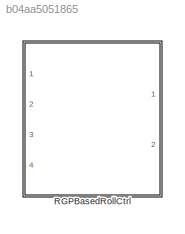
MODEL slx_b04aa5051865
KIND library
CONFIG AbsTol = auto
CONFIG EnableMultiTasking = off
CONFIG FixedStep = auto
CONFIG MaxStep = auto
CONFIG MinStep = auto
CONFIG RelTol = 1e-3
CONFIG SampleTimeConstraint = Unconstrained
CONFIG Solver = VariableStepAuto
CONFIG SolverName = VariableStepAuto
CONFIG StartTime = 0.0
CONFIG StopTime = 10.0
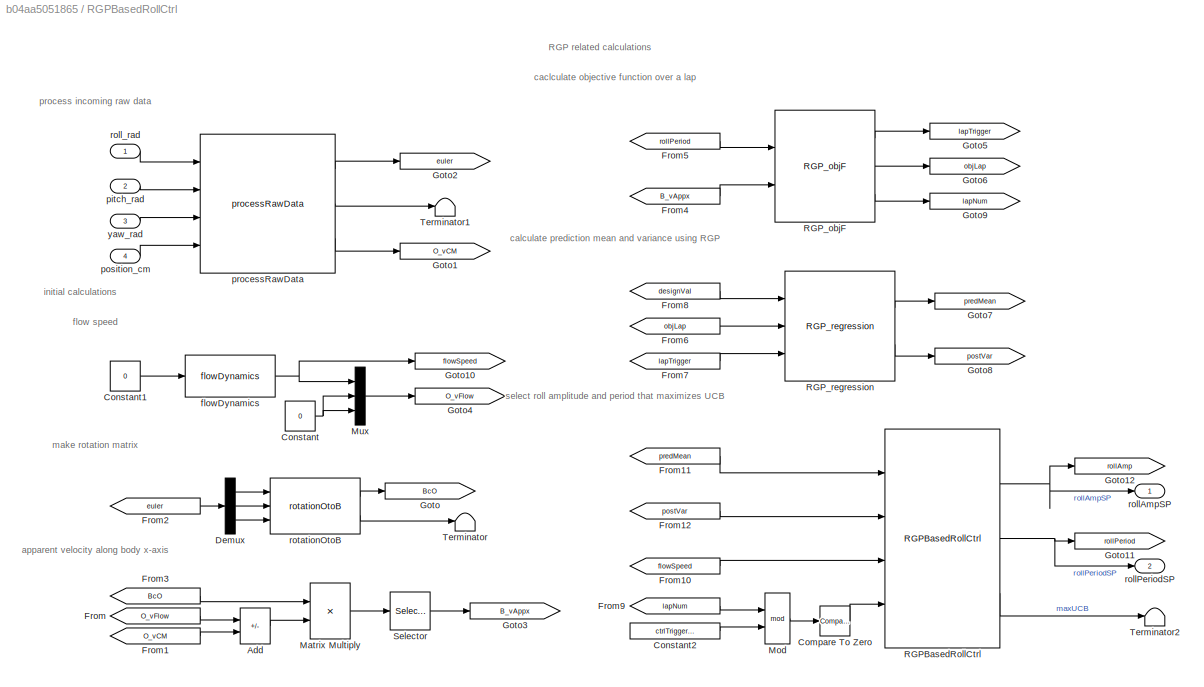
BLOCK [SubSystem] RGPBasedRollCtrl
  Ports = [4, 2]
  RequestExecContextInheritance = off
BLOCK [Sum] RGPBasedRollCtrl/Add
  IconShape = rectangular
  Inputs = +-
  Ports = [2, 1]
BLOCK [Reference] RGPBasedRollCtrl/Compare To Zero  REF=simulink/Logic and Bit
Operations/Compare
To Zero
  Ports = [1, 1]
  SourceBlock = simulink/Logic and Bit\nOperations/Compare\nTo Zero
  SourceProductBaseCode = SL
  SourceType = Compare To Zero
BLOCK [Constant] RGPBasedRollCtrl/Constant
  Value = 0
BLOCK [Constant] RGPBasedRollCtrl/Constant1
  Value = 0
BLOCK [Constant] RGPBasedRollCtrl/Constant2
  Value = ctrlTriggerInt
BLOCK [Demux] RGPBasedRollCtrl/Demux
  Outputs = 3
  Ports = [1, 3]
BLOCK [From] RGPBasedRollCtrl/From
  GotoTag = O_vFlow
BLOCK [From] RGPBasedRollCtrl/From1
  GotoTag = O_vCM
BLOCK [From] RGPBasedRollCtrl/From10
  GotoTag = flowSpeed
BLOCK [From] RGPBasedRollCtrl/From11
  GotoTag = predMean
BLOCK [From] RGPBasedRollCtrl/From12
  GotoTag = postVar
BLOCK [From] RGPBasedRollCtrl/From2
  GotoTag = euler
BLOCK [From] RGPBasedRollCtrl/From3
  GotoTag = BcO
BLOCK [From] RGPBasedRollCtrl/From4
  GotoTag = B_vAppx
BLOCK [From] RGPBasedRollCtrl/From5
  GotoTag = rollPeriod
BLOCK [From] RGPBasedRollCtrl/From6
  GotoTag = objLap
BLOCK [From] RGPBasedRollCtrl/From7
  GotoTag = lapTrigger
BLOCK [From] RGPBasedRollCtrl/From8
  GotoTag = designVal
BLOCK [From] RGPBasedRollCtrl/From9
  GotoTag = lapNum
BLOCK [Goto] RGPBasedRollCtrl/Goto
  GotoTag = BcO
BLOCK [Goto] RGPBasedRollCtrl/Goto1
  GotoTag = O_vCM
BLOCK [Goto] RGPBasedRollCtrl/Goto10
  GotoTag = flowSpeed
BLOCK [Goto] RGPBasedRollCtrl/Goto11
  GotoTag = rollPeriod
BLOCK [Goto] RGPBasedRollCtrl/Goto12
  GotoTag = rollAmp
BLOCK [Goto] RGPBasedRollCtrl/Goto2
  GotoTag = euler
BLOCK [Goto] RGPBasedRollCtrl/Goto3
  GotoTag = B_vAppx
BLOCK [Goto] RGPBasedRollCtrl/Goto4
  GotoTag = O_vFlow
BLOCK [Goto] RGPBasedRollCtrl/Goto5
  GotoTag = lapTrigger
BLOCK [Goto] RGPBasedRollCtrl/Goto6
  GotoTag = objLap
BLOCK [Goto] RGPBasedRollCtrl/Goto7
  GotoTag = predMean
BLOCK [Goto] RGPBasedRollCtrl/Goto8
  GotoTag = postVar
BLOCK [Goto] RGPBasedRollCtrl/Goto9
  GotoTag = lapNum
BLOCK [Product] RGPBasedRollCtrl/Matrix Multiply
  Multiplication = Matrix(*)
  Ports = [2, 1]
BLOCK [Math] RGPBasedRollCtrl/Mod
  Operator = mod
  Ports = [2, 1]
BLOCK [Mux] RGPBasedRollCtrl/Mux
  DisplayOption = bar
  Inputs = 3
  Ports = [3, 1]
BLOCK [Reference] RGPBasedRollCtrl/RGPBasedRollCtrl  REF=RGP_ctrl/RGPBasedRollCtrl
  Ports = [4, 3]
  SourceBlock = RGP_ctrl/RGPBasedRollCtrl
BLOCK [Reference] RGPBasedRollCtrl/RGP_objF  REF=RGP_objF/RGP_objF
  Ports = [2, 3]
  SourceBlock = RGP_objF/RGP_objF
BLOCK [Reference] RGPBasedRollCtrl/RGP_regression  REF=RGP_regression/RGP_regression
  Ports = [3, 2]
  SourceBlock = RGP_regression/RGP_regression
BLOCK [Selector] RGPBasedRollCtrl/Selector
  IndexOptions = Index vector (dialog)
  Indices = 1
  InputPortWidth = 3
  OutputSizes = 1
  Ports = [1, 1]
BLOCK [Terminator] RGPBasedRollCtrl/Terminator
BLOCK [Terminator] RGPBasedRollCtrl/Terminator1
BLOCK [Terminator] RGPBasedRollCtrl/Terminator2
BLOCK [Reference] RGPBasedRollCtrl/flowDynamics  REF=flowSpeedCtrl/flowDynamics
  Ports = [1, 1]
  SourceBlock = flowSpeedCtrl/flowDynamics
  SourceType = SubSystem
BLOCK [Inport] RGPBasedRollCtrl/pitch_rad
  Port = 2
BLOCK [Inport] RGPBasedRollCtrl/position_cm
  Port = 4
BLOCK [Reference] RGPBasedRollCtrl/processRawData  REF=processRawData/processRawData
  Ports = [4, 3]
  SourceBlock = processRawData/processRawData
BLOCK [Outport] RGPBasedRollCtrl/rollAmpSP
BLOCK [Outport] RGPBasedRollCtrl/rollPeriodSP
  Port = 2
BLOCK [Inport] RGPBasedRollCtrl/roll_rad
BLOCK [Reference] RGPBasedRollCtrl/rotationOtoB  REF=makeOcB_cl/rotationOtoB
  Ports = [3, 2]
  SourceBlock = makeOcB_cl/rotationOtoB
  SourceType = SubSystem
BLOCK [Inport] RGPBasedRollCtrl/yaw_rad
  Port = 3
ANNOTATION RGPBasedRollCtrl: RGP related calculations
ANNOTATION RGPBasedRollCtrl: apparent velocity along body x-axis
ANNOTATION RGPBasedRollCtrl: caclculate objective function over a lap
ANNOTATION RGPBasedRollCtrl: calculate prediction mean and variance using RGP
ANNOTATION RGPBasedRollCtrl: flow speed
ANNOTATION RGPBasedRollCtrl: initial calculations
ANNOTATION RGPBasedRollCtrl: make rotation matrix
ANNOTATION RGPBasedRollCtrl: process incoming raw data
ANNOTATION RGPBasedRollCtrl: select roll amplitude and period that maximizes UCB
LINE RGPBasedRollCtrl/Add:1 -> RGPBasedRollCtrl/Matrix Multiply:2
LINE RGPBasedRollCtrl/Compare To Zero:1 -> RGPBasedRollCtrl/RGPBasedRollCtrl:4
LINE RGPBasedRollCtrl/Constant1:1 -> RGPBasedRollCtrl/flowDynamics:1
LINE RGPBasedRollCtrl/Constant2:1 -> RGPBasedRollCtrl/Mod:2
NET RGPBasedRollCtrl/Constant:1 -> RGPBasedRollCtrl/Mux:2, RGPBasedRollCtrl/Mux:3
LINE RGPBasedRollCtrl/Demux:1 -> RGPBasedRollCtrl/rotationOtoB:1
LINE RGPBasedRollCtrl/Demux:2 -> RGPBasedRollCtrl/rotationOtoB:2
LINE RGPBasedRollCtrl/Demux:3 -> RGPBasedRollCtrl/rotationOtoB:3
LINE RGPBasedRollCtrl/From10:1 -> RGPBasedRollCtrl/RGPBasedRollCtrl:3
LINE RGPBasedRollCtrl/From11:1 -> RGPBasedRollCtrl/RGPBasedRollCtrl:1
LINE RGPBasedRollCtrl/From12:1 -> RGPBasedRollCtrl/RGPBasedRollCtrl:2
LINE RGPBasedRollCtrl/From1:1 -> RGPBasedRollCtrl/Add:2
LINE RGPBasedRollCtrl/From2:1 -> RGPBasedRollCtrl/Demux:1
LINE RGPBasedRollCtrl/From3:1 -> RGPBasedRollCtrl/Matrix Multiply:1
LINE RGPBasedRollCtrl/From4:1 -> RGPBasedRollCtrl/RGP_objF:2
LINE RGPBasedRollCtrl/From5:1 -> RGPBasedRollCtrl/RGP_objF:1
LINE RGPBasedRollCtrl/From6:1 -> RGPBasedRollCtrl/RGP_regression:2
LINE RGPBasedRollCtrl/From7:1 -> RGPBasedRollCtrl/RGP_regression:3
LINE RGPBasedRollCtrl/From8:1 -> RGPBasedRollCtrl/RGP_regression:1
LINE RGPBasedRollCtrl/From9:1 -> RGPBasedRollCtrl/Mod:1
LINE RGPBasedRollCtrl/From:1 -> RGPBasedRollCtrl/Add:1
LINE RGPBasedRollCtrl/Matrix Multiply:1 -> RGPBasedRollCtrl/Selector:1
LINE RGPBasedRollCtrl/Mod:1 -> RGPBasedRollCtrl/Compare To Zero:1
LINE RGPBasedRollCtrl/Mux:1 -> RGPBasedRollCtrl/Goto4:1
NET RGPBasedRollCtrl/RGPBasedRollCtrl:1 -> RGPBasedRollCtrl/Goto12:1, RGPBasedRollCtrl/rollAmpSP:1
NET RGPBasedRollCtrl/RGPBasedRollCtrl:2 -> RGPBasedRollCtrl/Goto11:1, RGPBasedRollCtrl/rollPeriodSP:1
LINE RGPBasedRollCtrl/RGPBasedRollCtrl:3 -> RGPBasedRollCtrl/Terminator2:1
LINE RGPBasedRollCtrl/RGP_objF:1 -> RGPBasedRollCtrl/Goto5:1
LINE RGPBasedRollCtrl/RGP_objF:2 -> RGPBasedRollCtrl/Goto6:1
LINE RGPBasedRollCtrl/RGP_objF:3 -> RGPBasedRollCtrl/Goto9:1
LINE RGPBasedRollCtrl/RGP_regression:1 -> RGPBasedRollCtrl/Goto7:1
LINE RGPBasedRollCtrl/RGP_regression:2 -> RGPBasedRollCtrl/Goto8:1
LINE RGPBasedRollCtrl/Selector:1 -> RGPBasedRollCtrl/Goto3:1
NET RGPBasedRollCtrl/flowDynamics:1 -> RGPBasedRollCtrl/Goto10:1, RGPBasedRollCtrl/Mux:1
LINE RGPBasedRollCtrl/pitch_rad:1 -> RGPBasedRollCtrl/processRawData:2
LINE RGPBasedRollCtrl/position_cm:1 -> RGPBasedRollCtrl/processRawData:4
LINE RGPBasedRollCtrl/processRawData:1 -> RGPBasedRollCtrl/Goto2:1
LINE RGPBasedRollCtrl/processRawData:2 -> RGPBasedRollCtrl/Terminator1:1
LINE RGPBasedRollCtrl/processRawData:3 -> RGPBasedRollCtrl/Goto1:1
LINE RGPBasedRollCtrl/roll_rad:1 -> RGPBasedRollCtrl/processRawData:1
LINE RGPBasedRollCtrl/rotationOtoB:1 -> RGPBasedRollCtrl/Goto:1
LINE RGPBasedRollCtrl/rotationOtoB:2 -> RGPBasedRollCtrl/Terminator:1
LINE RGPBasedRollCtrl/yaw_rad:1 -> RGPBasedRollCtrl/processRawData:3
note: NET lines group one-source signal fan-out (src -> all destinations, sorted); 1:1 wires keep LINE
